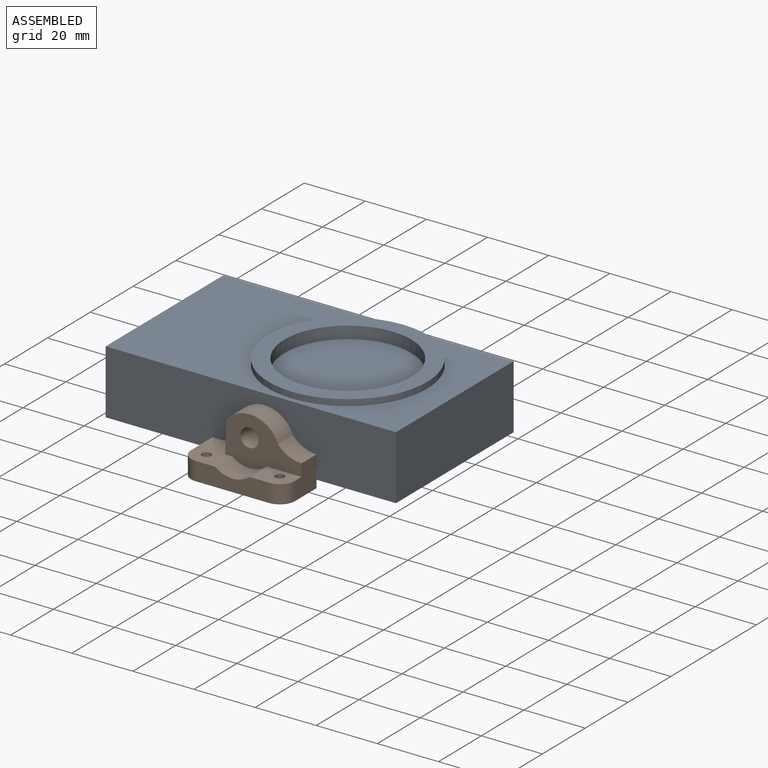
[diagram: assembled view]
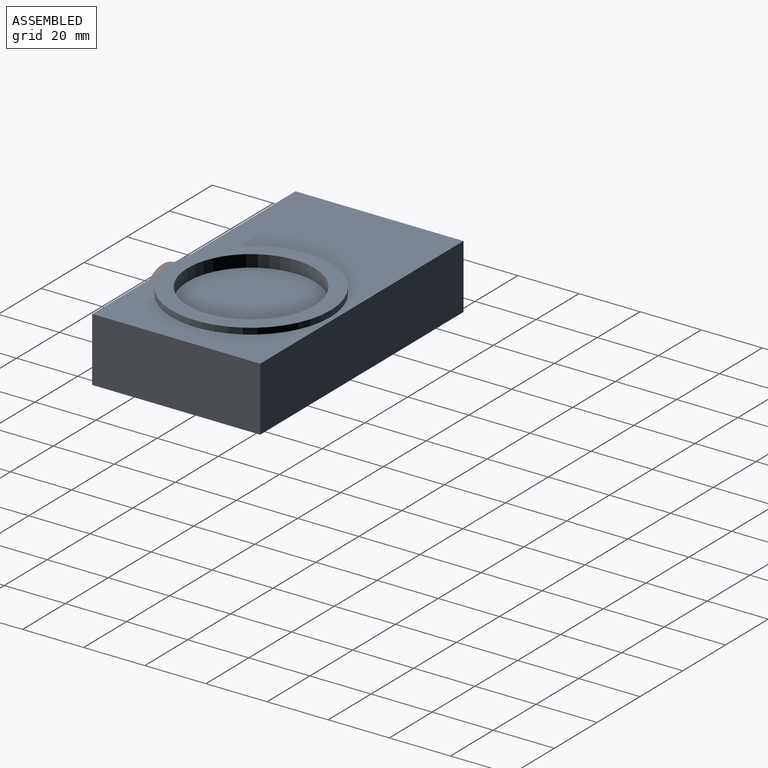
[diagram: assembled view, second angle]
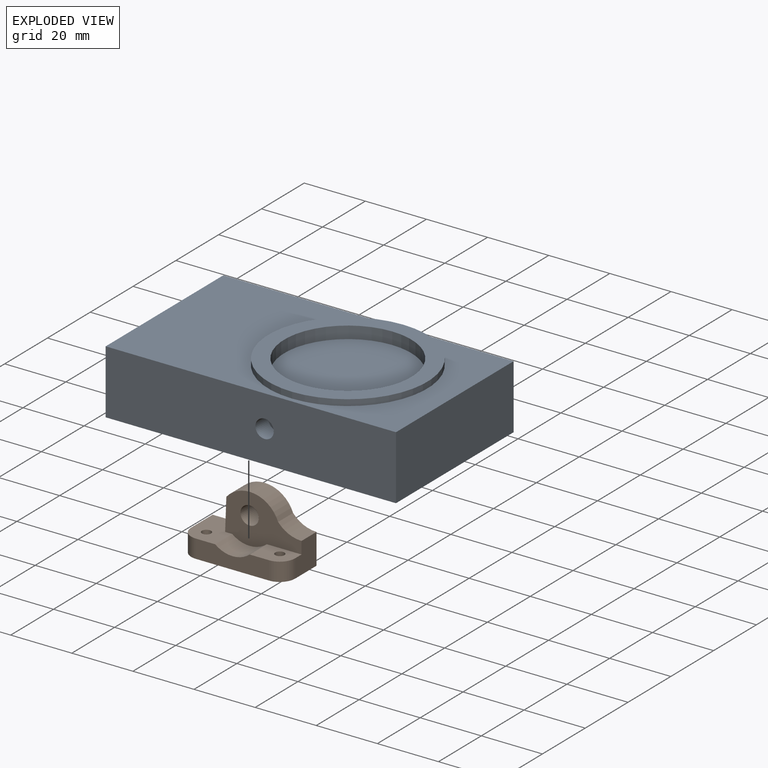
[diagram: exploded view]
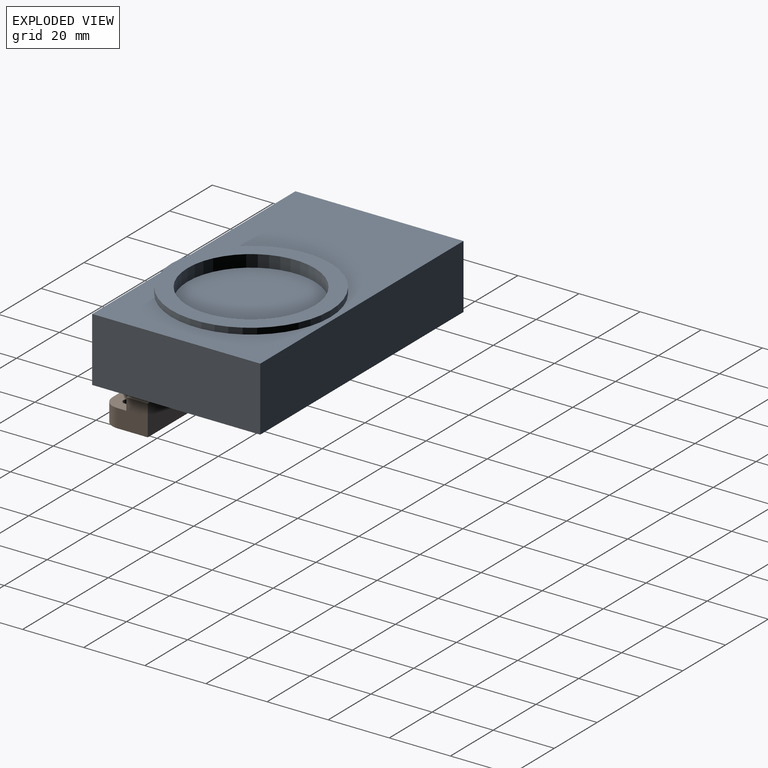
[diagram: exploded view, second angle]
ASSEMBLY  parts=2 mates=3
PART A: 14 faces, bbox 95x23x55 mm
  f0: plane 95x21mm, normal (0,0,-1), area 1966.7mm2, adj f1,f3,f4,f5,f10
  f1: plane 55x21mm, normal (1,0,0), area 1155mm2, adj f0,f2,f4,f5
  f2: plane 95x21mm, normal (0,0,1), area 1995mm2, adj f1,f3,f4,f5
  f3: plane 55x21mm, normal (-1,0,0), area 1155mm2, adj f0,f2,f4,f5
  f4: plane 95x55mm, normal (0,-1,0), area 3101.3mm2, adj f0,f1,f2,f3,f6
  f5: plane 95x55mm, normal (0,1,0), area 5217.9mm2, adj f0,f1,f2,f3,f12
  f6: cylinder r=26mm len=52mm, axis (0,1,0), area 326.7mm2, adj f4,f7
  f7: plane 52x52mm, normal (0,-1,0), area 767.3mm2, adj f6,f8
  f8: cylinder r=20.78mm len=41.56mm, axis (0,-1,0), area 522.2mm2, adj f7,f9
  f9: plane 41.56x41.56mm, normal (0,-1,0), area 1356.4mm2, adj f8
  f10: cylinder r=3mm len=6mm, axis (0,0,-1), area 113.1mm2, adj f0,f11
  f11: plane 6x6mm, normal (0,0,-1), area 28.3mm2, adj f10
  f12: cylinder r=1.5mm len=5mm, axis (0,1,0), area 47.1mm2, adj f5,f13
  f13: plane 3x3mm, normal (0,1,0), area 7.1mm2, adj f12
PART B: 17 faces, bbox 34x15x20 mm
  f0: plane 11.34x8mm, normal (0,0,1), area 78.3mm2, adj f2,f3,f5,f12,f13,f16
  f1: plane 15x11.34mm, normal (0,0,1), area 141.3mm2, adj f2,f3,f8,f9,f11,f12,f14,f15
  f2: plane 24x6mm, normal (0,-1,0), area 128.5mm2, adj f0,f1,f4,f12,f15,f16
  f3: plane 25x16mm, normal (0,-1,0), area 240.8mm2, adj f0,f1,f5,f6,f7,f8,f10,f12
  f4: plane 34x15mm, normal (0,0,-1), area 485.1mm2, adj f2,f5,f9,f11,f13,f14,f15,f16
  f5: plane 10x10mm, normal (1,0,0), area 88mm2, adj f0,f3,f4,f6,f11,f16
  f6: cylinder r=10mm len=7.66mm, axis (0,1,0), area 61.1mm2, adj f3,f5,f7,f11
  f7: cylinder r=10mm len=16.94mm, axis (0,1,0), area 144.8mm2, adj f3,f6,f8,f11
  f8: plane 10.5x7mm, normal (-1,0,0.04), area 73.6mm2, adj f1,f3,f7,f11
  f9: plane 10x6mm, normal (-1,0,0), area 60mm2, adj f1,f4,f11,f15
  f10: cylinder r=3mm len=7mm, axis (0,1,0), area 131.9mm2, adj f3,f11
  f11: plane 34x20mm, normal (0,1,0), area 429.4mm2, adj f1,f4,f5,f6,f7,f8,f9,f10
  f12: cylinder r=9mm len=11.31mm, axis (0,1,0), area 97.9mm2, adj f0,f1,f2,f3
  f13: cylinder r=1.5mm len=6mm, axis (0,0,-1), area 56.5mm2, adj f0,f4
  f14: cylinder r=1.5mm len=6mm, axis (0,0,-1), area 56.5mm2, adj f1,f4
  f15: cylinder r=5mm len=6mm, axis (0,0,1), area 47.1mm2, adj f1,f2,f4,f9
  f16: cylinder r=5mm len=6mm, axis (0,0,-1), area 47.1mm2, adj f0,f2,f4,f5
PLACE A rot(axis=(-1,0,0),90deg) t=(-17.34,27.36,-7.84)mm
PLACE B t=(-12.84,-0.14,-0.34)mm fixed
MATE parallel A.f5 <-> B.f4  axis (0,0,-1) through (-17.34,27.36,-7.84)mm
MATE cylindrical A.f10 <-> B.f10  axis (0,-1,0) through (-12.84,-0.14,2.66)mm
MATE planar B.f7 <-> A.f0  axis (0,1,0) through (-12.84,-0.14,-0.34)mm
